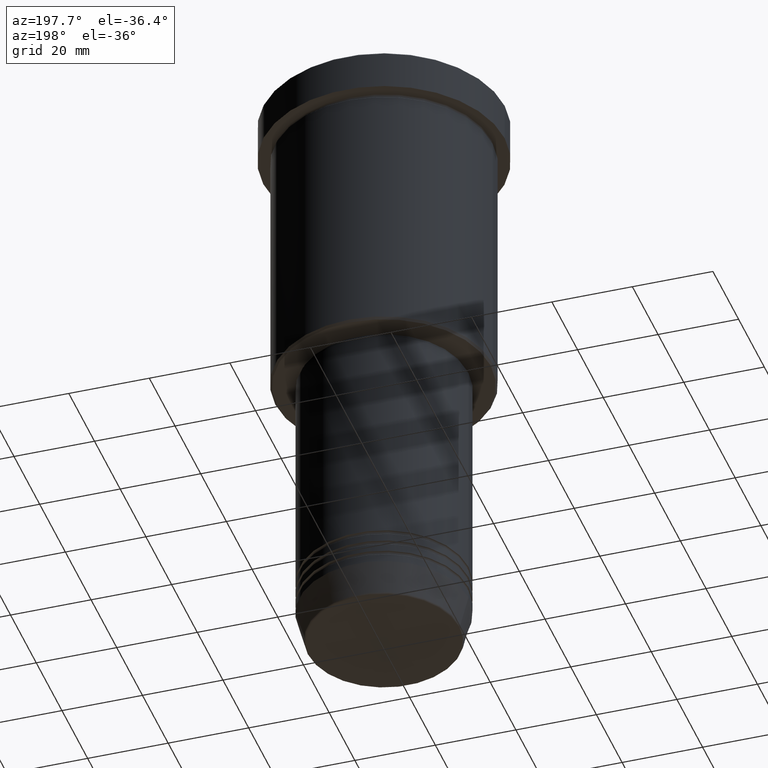
[diagram: clean part render]
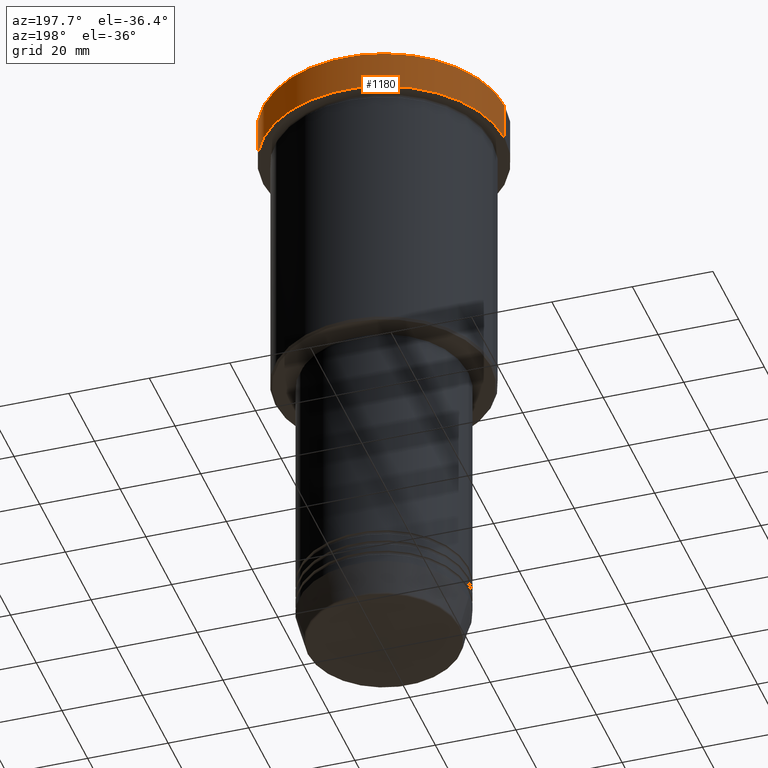
[diagram: same view with one face highlighted and labeled with its STEP entity id]
A machine part, auxiliary view. The second image highlights one B-rep face of the part: STEP entity #1180.
In plain terms, the highlighted cylindrical surface (partial cylindrical patch) has radius 30 mm, axis along (-0, -0, 1).
Its self-contained STEP definition (entity closure, byte-faithful):
#17 = DIRECTION ( 'NONE',  ( -0.000000000000000000, -0.000000000000000000, 1.000000000000000000 ) ) ;
#51 = EDGE_CURVE ( 'NONE', #1047, #653, #252, .T. ) ;
#80 = DIRECTION ( 'NONE',  ( 1.000000000000000000, 0.000000000000000000, 0.000000000000000000 ) ) ;
#163 = EDGE_CURVE ( 'NONE', #263, #653, #909, .T. ) ;
#252 = LINE ( 'NONE', #526, #516 ) ;
#263 = VERTEX_POINT ( 'NONE', #597 ) ;
#267 = CARTESIAN_POINT ( 'NONE',  ( 0.000000000000000000, 0.000000000000000000, 0.000000000000000000 ) ) ;
#331 = CARTESIAN_POINT ( 'NONE',  ( -30.00000000000000000, 3.673940397442059178E-15, -9.999999999999992895 ) ) ;
#368 = AXIS2_PLACEMENT_3D ( 'NONE', #899, #699, #877 ) ;
#418 = AXIS2_PLACEMENT_3D ( 'NONE', #267, #1175, #80 ) ;
#433 = CARTESIAN_POINT ( 'NONE',  ( 0.000000000000000000, 0.000000000000000000, -9.999999999999992895 ) ) ;
#456 = EDGE_CURVE ( 'NONE', #1047, #1039, #759, .T. ) ;
#474 = AXIS2_PLACEMENT_3D ( 'NONE', #433, #725, #808 ) ;
#484 = CARTESIAN_POINT ( 'NONE',  ( -30.00000000000000000, 3.673940397442059178E-15, 0.000000000000000000 ) ) ;
#511 = ORIENTED_EDGE ( 'NONE', *, *, #51, .F. ) ;
#516 = VECTOR ( 'NONE', #1026, 1000.000000000000000 ) ;
#519 = EDGE_LOOP ( 'NONE', ( #940, #777, #630, #511 ) ) ;
#526 = CARTESIAN_POINT ( 'NONE',  ( 30.00000000000000000, 0.000000000000000000, 0.000000000000000000 ) ) ;
#585 = LINE ( 'NONE', #484, #818 ) ;
#597 = CARTESIAN_POINT ( 'NONE',  ( -30.00000000000000000, 3.673940397442059178E-15, -0.5000000000000073275 ) ) ;
#630 = ORIENTED_EDGE ( 'NONE', *, *, #163, .T. ) ;
#637 = CYLINDRICAL_SURFACE ( 'NONE', #418, 30.00000000000000000 ) ;
#653 = VERTEX_POINT ( 'NONE', #1054 ) ;
#699 = DIRECTION ( 'NONE',  ( 0.000000000000000000, 0.000000000000000000, -1.000000000000000000 ) ) ;
#725 = DIRECTION ( 'NONE',  ( -0.000000000000000000, -0.000000000000000000, 1.000000000000000000 ) ) ;
#759 = CIRCLE ( 'NONE', #474, 30.00000000000000000 ) ;
#777 = ORIENTED_EDGE ( 'NONE', *, *, #1081, .T. ) ;
#808 = DIRECTION ( 'NONE',  ( 1.000000000000000000, 0.000000000000000000, 0.000000000000000000 ) ) ;
#818 = VECTOR ( 'NONE', #17, 1000.000000000000000 ) ;
#859 = CARTESIAN_POINT ( 'NONE',  ( 30.00000000000000000, 0.000000000000000000, -9.999999999999992895 ) ) ;
#877 = DIRECTION ( 'NONE',  ( 1.000000000000000000, 0.000000000000000000, 0.000000000000000000 ) ) ;
#899 = CARTESIAN_POINT ( 'NONE',  ( 0.000000000000000000, 0.000000000000000000, -0.5000000000000073275 ) ) ;
#909 = CIRCLE ( 'NONE', #368, 30.00000000000000000 ) ;
#940 = ORIENTED_EDGE ( 'NONE', *, *, #456, .T. ) ;
#1026 = DIRECTION ( 'NONE',  ( -0.000000000000000000, -0.000000000000000000, 1.000000000000000000 ) ) ;
#1039 = VERTEX_POINT ( 'NONE', #331 ) ;
#1047 = VERTEX_POINT ( 'NONE', #859 ) ;
#1054 = CARTESIAN_POINT ( 'NONE',  ( 30.00000000000000000, 0.000000000000000000, -0.5000000000000073275 ) ) ;
#1060 = FACE_OUTER_BOUND ( 'NONE', #519, .T. ) ;
#1081 = EDGE_CURVE ( 'NONE', #1039, #263, #585, .T. ) ;
#1175 = DIRECTION ( 'NONE',  ( -0.000000000000000000, -0.000000000000000000, 1.000000000000000000 ) ) ;
#1180 = ADVANCED_FACE ( 'NONE', ( #1060 ), #637, .T. ) ;